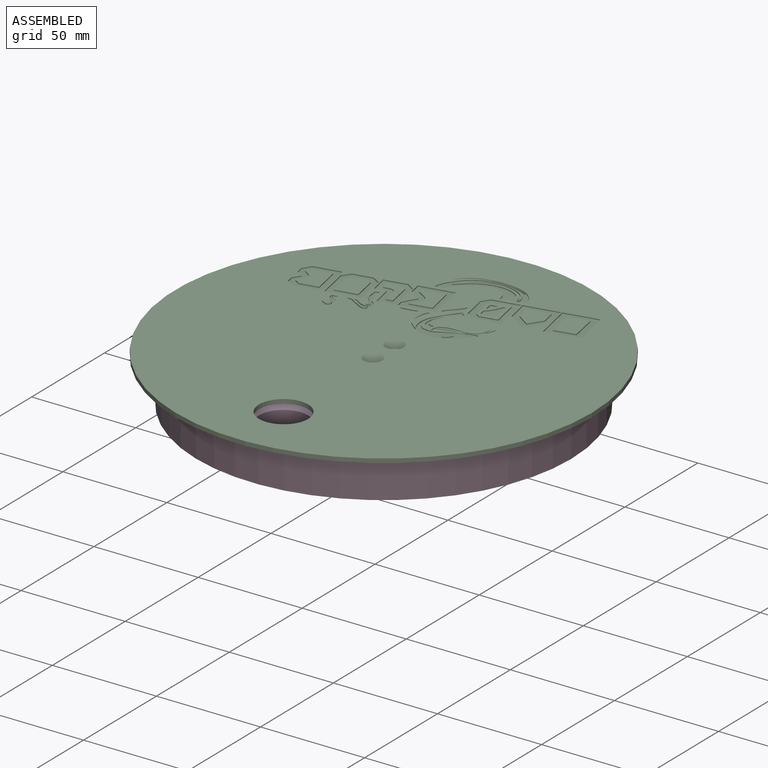
[diagram: assembled view]
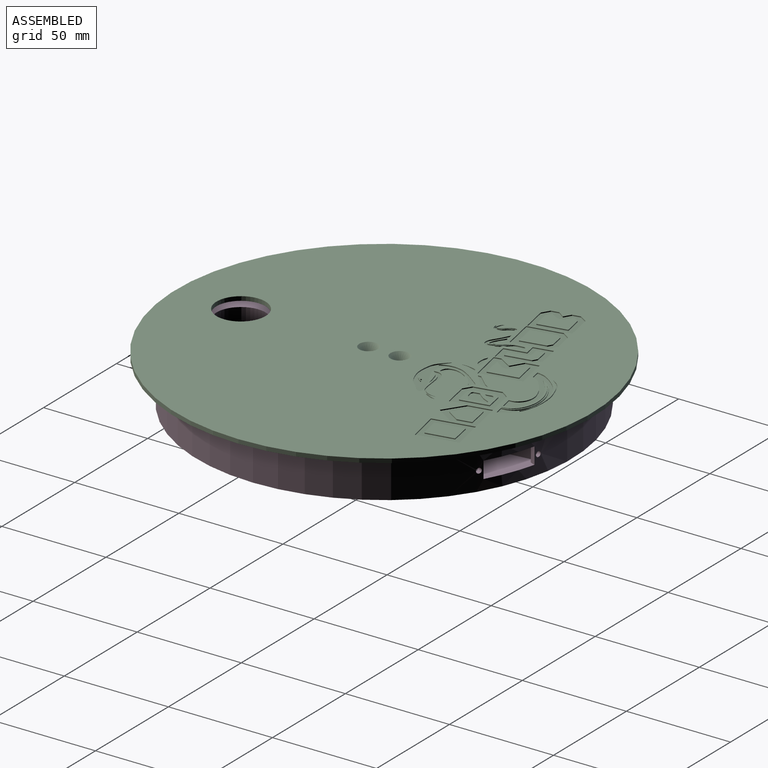
[diagram: assembled view, second angle]
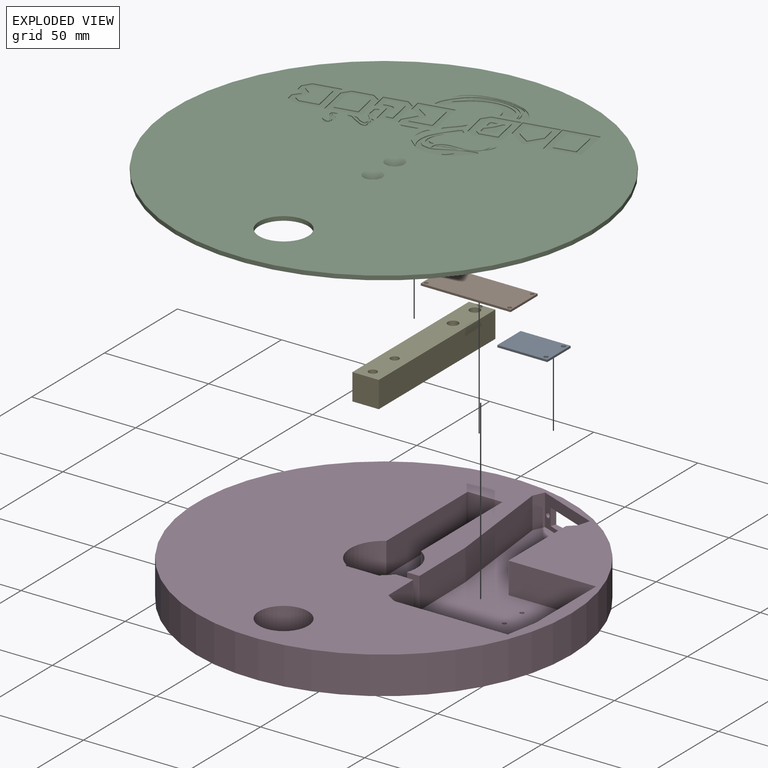
[diagram: exploded view]
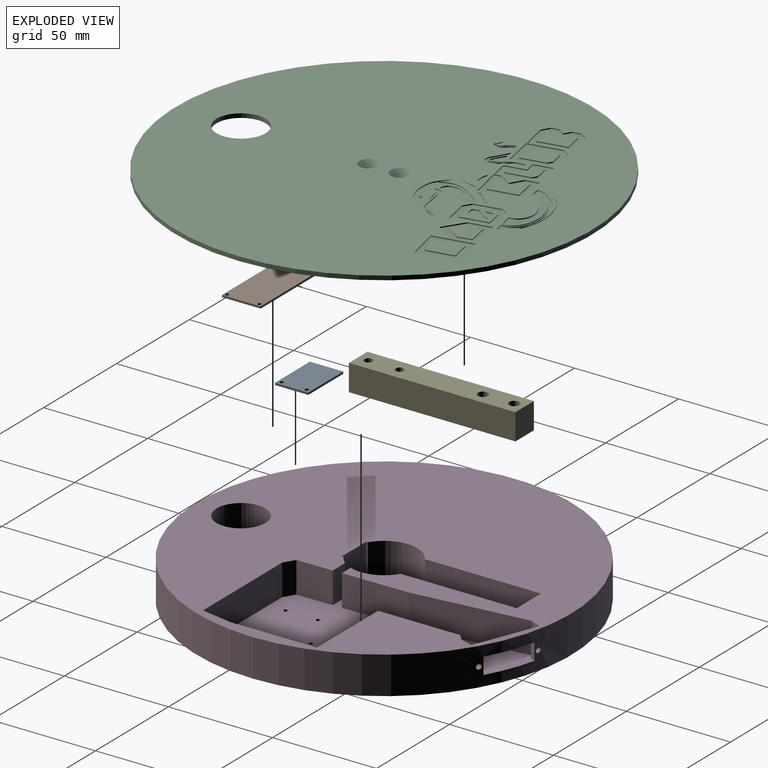
[diagram: exploded view, second angle]
ASSEMBLY  parts=5 mates=4
PART A: 8 faces, bbox 24x16x1 mm
  f0: plane 24x1mm, normal (0,-1,0), area 24mm2, adj f1,f3,f4,f5
  f1: plane 16x1mm, normal (1,0,0), area 16mm2, adj f0,f2,f4,f5
  f2: plane 24x1mm, normal (0,1,0), area 24mm2, adj f1,f3,f4,f5
  f3: plane 16x1mm, normal (-1,0,0), area 16mm2, adj f0,f2,f4,f5
  f4: plane 24x16mm, normal (0,0,1), area 377.7mm2, adj f0,f1,f2,f3,f6,f7
  f5: plane 24x16mm, normal (0,0,-1), area 377.7mm2, adj f0,f1,f2,f3,f6,f7
  f6: cylinder r=1mm len=2mm, axis (0,0,1), area 6.3mm2, adj f4,f5
  f7: cylinder r=1mm len=2mm, axis (0,0,1), area 6.3mm2, adj f4,f5
PART B: 10 faces, bbox 43.2x18.5x1 mm
  f0: plane 43.18x1mm, normal (0,-1,0), area 43.2mm2, adj f1,f3,f4,f5
  f1: plane 18.54x1mm, normal (1,0,0), area 18.5mm2, adj f0,f2,f4,f5
  f2: plane 43.18x1mm, normal (0,1,0), area 43.2mm2, adj f1,f3,f4,f5
  f3: plane 18.54x1mm, normal (-1,0,0), area 18.5mm2, adj f0,f2,f4,f5
  f4: plane 43.18x18.54mm, normal (0,0,1), area 790.7mm2, adj f0,f1,f2,f3,f6,f7,f8,f9
  f5: plane 43.18x18.54mm, normal (0,0,-1), area 790.7mm2, adj f0,f1,f2,f3,f6,f7,f8,f9
  f6: cylinder r=0.89mm len=1.78mm, axis (0,0,1), area 5.6mm2, adj f4,f5
  f7: cylinder r=0.89mm len=1.78mm, axis (0,0,1), area 5.6mm2, adj f4,f5
  f8: cylinder r=0.89mm len=1.78mm, axis (0,0,1), area 5.6mm2, adj f4,f5
  f9: cylinder r=0.89mm len=1.78mm, axis (0,0,1), area 5.6mm2, adj f4,f5
PART C: 187 faces, bbox 200x200x6 mm
  f0: plane 200x200mm, normal (0,0,1), area 28322.9mm2, adj f2,f3,f10,f12,f13,f16,f17,f18
  f1: plane 200x200mm, normal (0,0,-1), area 30660.6mm2, adj f2,f3,f4,f5,f6,f7
  f2: cylinder r=100mm len=200mm, axis (0,0,-1), area 1256.6mm2, adj f0,f1
  f3: cylinder r=11.81mm len=23.61mm, axis (0,0,-1), area 148.4mm2, adj f0,f1
  f4: plane 12.7x4mm, normal (0,1,0), area 50.8mm2, adj f1,f5,f7,f8
  f5: plane 25x4mm, normal (-1,0,0), area 100mm2, adj f1,f4,f6,f8
  f6: plane 12.7x4mm, normal (0,-1,0), area 50.8mm2, adj f1,f5,f7,f8
  f7: plane 25x4mm, normal (1,0,0), area 100mm2, adj f1,f4,f6,f8
  f8: plane 25x12.7mm, normal (0,0,-1), area 301.4mm2, adj f4,f5,f6,f7,f9,f11
  f9: cylinder r=1.6mm len=3.2mm, axis (0,0,1), area 31.4mm2, adj f8,f10
  f10: cone r=1.6mm half-angle=45deg, axis (0,0,1), area 77.8mm2, adj f0,f9
  f11: cylinder r=1.6mm len=3.2mm, axis (0,0,1), area 31.4mm2, adj f8,f12
  f12: cone r=1.6mm half-angle=45deg, axis (0,0,1), area 77.8mm2, adj f0,f11
  f13: extruded ~27.86x24.67mm, area 59.8mm2, adj f0,f15
  f14: extruded ~3.57x3.29mm, area 5.2mm2, adj f15,f167
  f15: plane 29.77x25.54mm, normal (0,0,1), area 150mm2, adj f13,f14
  f16: plane 0.46x0.42mm, normal (0,1,0), area 0.2mm2, adj f0,f17,f18,f19
  f17: extruded ~26.94x9.3mm, area 15.4mm2, adj f0,f16,f18,f19
  f18: extruded ~26.52x8.74mm, area 14.9mm2, adj f0,f16,f17,f19
  f19: plane 26.94x9.36mm, normal (0,0,1), area 16.6mm2, adj f16,f17,f18
  f20: extruded ~5.87x2.06mm, area 2.9mm2, adj f0,f21,f22
  f21: extruded ~5.87x1.97mm, area 2.9mm2, adj f0,f20,f22
  f22: plane 5.87x2.09mm, normal (0,0,1), area 2.9mm2, adj f20,f21
  f23: extruded ~18.16x12.3mm, area 11.5mm2, adj f0,f24,f28,f29
  f24: extruded ~19.28x14.25mm, area 13mm2, adj f0,f23,f25,f29
  f25: plane 0.46x0.35mm, normal (0.96,0.28,0), area 0.2mm2, adj f0,f24,f26,f29
  f26: plane 0.46x0.35mm, normal (-0.86,0.51,0), area 0.2mm2, adj f0,f25,f27,f29
  f27: extruded ~9.86x4.38mm, area 5.1mm2, adj f0,f26,f28,f29
  f28: extruded ~8.94x2.43mm, area 4.3mm2, adj f0,f23,f27,f29
  f29: plane 19.58x14.6mm, normal (0,0,1), area 25.7mm2, adj f23,f24,f25,f26,f27,f28
  f30: plane 16.1x3.5mm, normal (-0.21,0.98,0), area 7.6mm2, adj f0,f31,f37,f38
  f31: plane 18.73x3.83mm, normal (-0.98,-0.2,0), area 8.8mm2, adj f0,f30,f32,f38
  f32: plane 16.14x3.3mm, normal (0.2,-0.98,0), area 7.6mm2, adj f0,f31,f37,f38
  f33: plane 13x2.47mm, normal (0.98,0.19,0), area 6.1mm2, adj f34,f36,f38,f39
  f34: plane 9.79x2.13mm, normal (0.21,-0.98,0), area 4.6mm2, adj f33,f35,f38,f39
  f35: plane 13.26x2.52mm, normal (-0.98,-0.19,0), area 6.2mm2, adj f34,f36,f38,f39
  f36: plane 9.84x1.87mm, normal (-0.19,0.98,0), area 4.6mm2, adj f33,f35,f38,f39
  f37: plane 18.93x3.87mm, normal (0.98,0.2,0), area 8.9mm2, adj f0,f30,f32,f38
  f38: plane 22.23x19.97mm, normal (0,0,1), area 182.8mm2, adj f30,f31,f32,f33,f34,f35,f36,f37
  f39: plane 15.13x12.3mm, normal (0,0,1), area 133.8mm2, adj f33,f34,f35,f36
  f40: plane 10.55x2.05mm, normal (-0.19,0.98,0), area 4.9mm2, adj f41,f49,f50,f184
  f41: plane 6.63x1.34mm, normal (0.98,0.2,0), area 3.1mm2, adj f40,f42,f50,f184
  f42: plane 6.4x4.19mm, normal (0.84,-0.55,0), area 3.5mm2, adj f41,f43,f50,f184
  f43: plane 6.26x4.09mm, normal (-0.55,-0.84,0), area 3.4mm2, adj f42,f49,f50,f184
  f44: plane 9.58x6.32mm, normal (-0.83,0.55,0), area 5.3mm2, adj f0,f45,f48,f50
  f45: plane 10.95x2.11mm, normal (-0.98,-0.19,0), area 5.1mm2, adj f0,f44,f46,f50
  f46: plane 16.16x3.25mm, normal (0.2,-0.98,0), area 7.6mm2, adj f0,f45,f47,f50
  f47: plane 10.83x2.18mm, normal (0.98,0.2,0), area 5.1mm2, adj f0,f46,f48,f50
  f48: plane 9.76x6.44mm, normal (0.55,0.83,0), area 5.4mm2, adj f0,f44,f47,f50
  f49: plane 6.88x1.44mm, normal (-0.98,-0.2,0), area 3.2mm2, adj f40,f43,f50,f184
  f50: plane 20.53x18.27mm, normal (0,0,1), area 147mm2, adj f40,f41,f42,f43,f44,f45,f46,f47
  f51: plane 12.57x2.46mm, normal (-0.19,0.98,0), area 5.9mm2, adj f0,f52,f62,f63
  f52: plane 18.86x3.79mm, normal (-0.98,-0.2,0), area 8.8mm2, adj f0,f51,f53,f63
  f53: plane 12.69x2.55mm, normal (0.2,-0.98,0), area 6mm2, adj f0,f52,f54,f63
  f54: plane 3.72x2.58mm, normal (0.82,-0.57,0), area 2.1mm2, adj f0,f53,f55,f63
  f55: plane 12.6x2.57mm, normal (0.98,0.2,0), area 5.9mm2, adj f0,f54,f62,f63
  f56: plane 12.98x2.61mm, normal (0.98,0.2,0), area 6.1mm2, adj f57,f61,f63,f168
  f57: plane 8.18x1.77mm, normal (0.21,-0.98,0), area 3.9mm2, adj f56,f58,f63,f168
  f58: plane 2.02x1.37mm, normal (-0.56,-0.83,0), area 1.1mm2, adj f57,f59,f63,f168
  f59: plane 9.57x1.92mm, normal (-0.98,-0.2,0), area 4.5mm2, adj f58,f60,f63,f168
  f60: plane 2.17x1.34mm, normal (-0.85,0.52,0), area 1.2mm2, adj f59,f61,f63,f168
  f61: plane 8.18x1.64mm, normal (-0.2,0.98,0), area 3.8mm2, adj f56,f60,f63,f168
  f62: plane 3.93x2.45mm, normal (0.53,0.85,0), area 2.1mm2, adj f0,f51,f55,f63
  f63: plane 21.32x19.06mm, normal (0,0,1), area 169.2mm2, adj f51,f52,f53,f54,f55,f56,f57,f58
  f64: plane 11.84x2.46mm, normal (0.98,0.2,0), area 5.6mm2, adj f65,f75,f76,f185
  f65: plane 10.39x2.05mm, normal (0.19,-0.98,0), area 4.9mm2, adj f64,f66,f76,f185
  f66: plane 11.83x2.33mm, normal (-0.98,-0.19,0), area 5.5mm2, adj f65,f67,f76,f185
  f67: plane 1.97x1.19mm, normal (-0.86,0.52,0), area 1.1mm2, adj f66,f68,f76,f185
  f68: plane 6.95x1.37mm, normal (-0.19,0.98,0), area 3.3mm2, adj f67,f75,f76,f185
  f69: plane 9.19x1.81mm, normal (0.19,-0.98,0), area 4.3mm2, adj f0,f70,f74,f76
  f70: plane 3.83x2.64mm, normal (0.82,-0.57,0), area 2.1mm2, adj f0,f69,f71,f76
  f71: plane 15.85x3.12mm, normal (0.98,0.19,0), area 7.4mm2, adj f0,f70,f72,f76
  f72: plane 15.91x3.13mm, normal (-0.19,0.98,0), area 7.5mm2, adj f0,f71,f73,f76
  f73: plane 15.92x3.15mm, normal (-0.98,-0.19,0), area 7.5mm2, adj f0,f72,f74,f76
  f74: plane 4.05x2.44mm, normal (-0.52,-0.86,0), area 2.2mm2, adj f0,f69,f73,f76
  f75: plane 2.13x1.28mm, normal (0.52,0.86,0), area 1.1mm2, adj f64,f68,f76,f185
  f76: plane 21.49x19.03mm, normal (0,0,1), area 161.5mm2, adj f64,f65,f66,f67,f68,f69,f70,f71
  f77: plane 13.48x2.65mm, normal (0.98,0.19,0), area 6.3mm2, adj f78,f91,f92,f186
  f78: plane 8.7x1.71mm, normal (0.19,-0.98,0), area 4.1mm2, adj f77,f79,f92,f186
  f79: plane 2.54x1.53mm, normal (-0.52,-0.86,0), area 1.4mm2, adj f78,f80,f92,f186
  f80: extruded ~9.35x4.21mm, area 5.5mm2, adj f79,f81,f92,f186
  f81: plane 2.57x1.56mm, normal (-0.85,0.52,0), area 1.4mm2, adj f80,f91,f92,f186
  f82: plane 12.83x2.53mm, normal (-0.19,0.98,0), area 6mm2, adj f0,f83,f90,f92
  f83: plane 18.97x3.82mm, normal (-0.98,-0.2,0), area 8.9mm2, adj f0,f82,f84,f92
  f84: plane 12.7x2.5mm, normal (0.19,-0.98,0), area 6mm2, adj f0,f83,f85,f92
  f85: plane 3.98x2.51mm, normal (0.85,-0.53,0), area 2.2mm2, adj f0,f84,f86,f92
  f86: plane 3.76x0.74mm, normal (0.98,0.19,0), area 1.8mm2, adj f0,f85,f87,f92
  f87: plane 3.39x2.04mm, normal (0.52,0.86,0), area 1.8mm2, adj f0,f86,f88,f92
  f88: plane 3.35x2.42mm, normal (0.81,-0.59,0), area 1.9mm2, adj f0,f87,f89,f92
  f89: plane 3.59x0.71mm, normal (0.98,0.19,0), area 1.7mm2, adj f0,f88,f90,f92
  f90: plane 3.78x2.28mm, normal (0.52,0.86,0), area 2mm2, adj f0,f82,f89,f92
  f91: plane 8.86x1.74mm, normal (-0.19,0.98,0), area 4.2mm2, adj f77,f81,f92,f186
  f92: plane 21.5x19.03mm, normal (0,0,1), area 168.3mm2, adj f77,f78,f79,f80,f81,f82,f83,f84
  f93: plane 15.98x3.36mm, normal (-0.21,0.98,0), area 7.5mm2, adj f0,f94,f104,f105
  f94: plane 19.21x3.86mm, normal (-0.98,-0.2,0), area 9mm2, adj f0,f93,f95,f105
  f95: plane 16.01x3.22mm, normal (0.2,-0.98,0), area 7.5mm2, adj f0,f94,f96,f105
  f96: plane 6.16x1.24mm, normal (0.98,0.2,0), area 2.9mm2, adj f0,f95,f97,f105
  f97: plane 5.86x3.53mm, normal (0.52,0.86,0), area 3.1mm2, adj f0,f96,f98,f105
  f98: plane 6.4x3.86mm, normal (0.86,-0.52,0), area 3.4mm2, adj f0,f97,f104,f105
  f99: extruded ~11.57x6.44mm, area 7.3mm2, adj f100,f103,f105,f106
  f100: plane 2.01x0.46mm, normal (-0.99,-0.14,0), area 0.9mm2, adj f99,f101,f105,f106
  f101: plane 10.59x2.14mm, normal (-0.2,0.98,0), area 5mm2, adj f100,f102,f105,f106
  f102: plane 13.67x2.76mm, normal (0.98,0.2,0), area 6.4mm2, adj f101,f103,f105,f106
  f103: plane 10.03x2.05mm, normal (0.2,-0.98,0), area 4.7mm2, adj f99,f102,f105,f106
  f104: plane 3.25x0.65mm, normal (0.98,0.2,0), area 1.5mm2, adj f0,f93,f98,f105
  f105: plane 22.57x19.87mm, normal (0,0,1), area 182.4mm2, adj f93,f94,f95,f96,f97,f98,f99,f100
  f106: plane 15.72x13.36mm, normal (0,0,1), area 113.1mm2, adj f99,f100,f101,f102,f103
  f107: plane 8.87x1.84mm, normal (0.98,0.2,0), area 4.2mm2, adj f0,f108,f120,f121
  f108: plane 5.34x1.11mm, normal (-0.2,0.98,0), area 2.5mm2, adj f0,f107,f109,f121
  f109: plane 10.09x2.09mm, normal (0.98,0.2,0), area 4.7mm2, adj f0,f108,f110,f121
  f110: plane 8.32x1.73mm, normal (-0.2,0.98,0), area 3.9mm2, adj f0,f109,f111,f121
  f111: plane 15.62x3.08mm, normal (-0.98,-0.19,0), area 7.3mm2, adj f0,f110,f112,f121
  f112: plane 3.98x2.69mm, normal (-0.56,-0.83,0), area 2.2mm2, adj f0,f111,f120,f121
  f113: extruded ~6.14x2.23mm, area 3.3mm2, adj f114,f119,f121,f122
  f114: plane 3.72x0.71mm, normal (-0.98,-0.19,0), area 1.7mm2, adj f113,f115,f121,f122
  f115: plane 6.64x1.27mm, normal (-0.19,0.98,0), area 3.1mm2, adj f114,f116,f121,f122
  f116: plane 2.11x1.27mm, normal (0.52,0.86,0), area 1.1mm2, adj f115,f117,f121,f122
  f117: plane 11.83x2.33mm, normal (0.98,0.19,0), area 5.5mm2, adj f116,f118,f121,f122
  f118: plane 3.01x0.53mm, normal (0.17,-0.98,0), area 1.4mm2, adj f117,f119,f121,f122
  f119: plane 6.95x1.23mm, normal (-0.98,-0.17,0), area 3.2mm2, adj f113,f118,f121,f122
  f120: plane 10.53x2.19mm, normal (0.2,-0.98,0), area 4.9mm2, adj f0,f107,f112,f121
  f121: plane 20.03x17.59mm, normal (0,0,1), area 147.6mm2, adj f107,f108,f109,f110,f111,f112,f113,f114
  f122: plane 13.63x11.08mm, normal (0,0,1), area 62.2mm2, adj f113,f114,f115,f116,f117,f118,f119
  f123: plane 0.46x0.16mm, normal (0.27,-0.96,0), area 0.1mm2, adj f0,f124,f125,f126
  f124: plane 1.09x0.46mm, normal (0.19,-0.98,0), area 0.5mm2, adj f0,f123,f125,f126
  f125: extruded ~7.65x2.39mm, area 7.3mm2, adj f0,f123,f124,f126
  f126: plane 7.72x2.45mm, normal (0,0,1), area 4.1mm2, adj f123,f124,f125
  f127: plane 6.95x6.15mm, normal (-0.66,0.75,0), area 4.3mm2, adj f0,f128,f130,f131
  f128: plane 3.16x0.46mm, normal (-0.99,-0.14,0), area 1.5mm2, adj f0,f127,f129,f131
  f129: extruded ~7.69x6.5mm, area 4.6mm2, adj f0,f128,f130,f131
  f130: plane 1.62x0.46mm, normal (1,0,0), area 0.7mm2, adj f0,f127,f129,f131
  f131: plane 9.31x6.95mm, normal (0,0,1), area 15.7mm2, adj f127,f128,f129,f130
  f132: extruded ~11.25x4.12mm, area 6.8mm2, adj f0,f133,f134,f135
  f133: plane 2.13x0.5mm, normal (-0.97,0.23,0), area 1mm2, adj f0,f132,f134,f135
  f134: extruded ~9.13x3.79mm, area 5.6mm2, adj f0,f132,f133,f135
  f135: plane 11.25x4.68mm, normal (0,0,1), area 13.4mm2, adj f132,f133,f134
  f136: plane 4.39x0.76mm, normal (-0.17,0.99,0), area 2.1mm2, adj f0,f137,f145,f146
  f137: extruded ~9.23x8.98mm, area 6mm2, adj f0,f136,f138,f146
  f138: extruded ~14.14x6.7mm, area 8.4mm2, adj f0,f137,f139,f146
  f139: plane 5.71x1.16mm, normal (-0.2,0.98,0), area 2.7mm2, adj f0,f138,f140,f146
  f140: extruded ~28.74x8.79mm, area 16.3mm2, adj f0,f139,f141,f146
  f141: extruded ~30.77x10.88mm, area 18.4mm2, adj f0,f140,f142,f146
  f142: plane 4.18x0.84mm, normal (-0.2,0.98,0), area 2mm2, adj f0,f141,f143,f146
  f143: extruded ~37.15x10.26mm, area 20.5mm2, adj f0,f142,f144,f146
  f144: extruded ~30.99x8.78mm, area 15.9mm2, adj f0,f143,f145,f146
  f145: extruded ~33.28x17.37mm, area 19.5mm2, adj f0,f136,f144,f146
  f146: plane 39.43x18.24mm, normal (0,0,1), area 205.9mm2, adj f136,f137,f138,f139,f140,f141,f142,f143
  f147: extruded ~9.46x3.34mm, area 6.8mm2, adj f0,f148,f152,f153
  f148: plane 2.64x0.48mm, normal (0.18,-0.98,0), area 1.2mm2, adj f0,f147,f149,f153
  f149: extruded ~7.68x4.01mm, area 6mm2, adj f0,f148,f152,f153
  f150: extruded ~6.04x3.3mm, area 3.2mm2, adj f151,f153,f154
  f151: extruded ~6.04x3.25mm, area 3.2mm2, adj f150,f153,f154
  f152: extruded ~3.89x1.97mm, area 2.1mm2, adj f0,f147,f149,f153
  f153: plane 9.54x5.52mm, normal (0,0,1), area 19.2mm2, adj f147,f148,f149,f150,f151,f152
  f154: plane 6.04x3.32mm, normal (0,0,1), area 2.5mm2, adj f150,f151
  f155: extruded ~14.79x13.12mm, area 13.7mm2, adj f0,f156,f159,f160
  f156: plane 1.89x0.46mm, normal (-0.98,-0.19,0), area 0.9mm2, adj f0,f155,f157,f160
  f157: plane 1.2x0.46mm, normal (0.19,-0.98,0), area 0.6mm2, adj f0,f156,f158,f160
  f158: extruded ~15.27x9.48mm, area 20mm2, adj f0,f157,f159,f160
  f159: plane 1.99x0.46mm, normal (0.17,-0.98,0), area 0.9mm2, adj f0,f155,f158,f160
  f160: plane 16.75x13.18mm, normal (0,0,1), area 40.8mm2, adj f155,f156,f157,f158,f159
  f161: extruded ~7.81x4.05mm, area 9.2mm2, adj f0,f162,f163
  f162: plane 1.32x0.46mm, normal (0.18,-0.98,0), area 0.6mm2, adj f0,f161,f163
  f163: plane 7.84x4.11mm, normal (0,0,1), area 8.7mm2, adj f161,f162
  f164: extruded ~8.35x2.57mm, area 4.4mm2, adj f0,f165,f166
  f165: plane 8.35x1.65mm, normal (0.19,-0.98,0), area 3.9mm2, adj f0,f164,f166
  f166: plane 8.35x2.59mm, normal (0,0,1), area 10.9mm2, adj f164,f165
  f167: plane 3.67x3.36mm, normal (0,0,1), area 2.4mm2, adj f14
  f168: plane 14.76x12.12mm, normal (0,0,1), area 81.3mm2, adj f56,f57,f58,f59,f60,f61,f169,f170
  f169: plane 2.94x2.05mm, normal (-0.57,0.82,0), area 1.6mm2, adj f168,f170,f177,f178
  f170: plane 8.05x1.62mm, normal (-0.98,-0.2,0), area 3.8mm2, adj f168,f169,f171,f178
  f171: plane 0.97x0.46mm, normal (0.2,-0.98,0), area 0.5mm2, adj f168,f170,f172,f178
  f172: plane 3.46x1.59mm, normal (0.91,-0.42,0), area 1.8mm2, adj f168,f171,f173,f178
  f173: plane 2.63x1.96mm, normal (0.8,-0.6,0), area 1.5mm2, adj f168,f172,f174,f178
  f174: plane 0.98x0.95mm, normal (0.7,-0.72,0), area 0.6mm2, adj f168,f173,f175,f178
  f175: plane 2.92x0.59mm, normal (0.98,0.2,0), area 1.4mm2, adj f168,f174,f176,f178
  f176: plane 0.84x0.49mm, normal (0.51,0.86,0), area 0.4mm2, adj f168,f175,f177,f178
  f177: plane 2.75x0.55mm, normal (-0.2,0.98,0), area 1.3mm2, adj f168,f169,f176,f178
  f178: plane 10.64x7.1mm, normal (0,0,1), area 42.9mm2, adj f169,f170,f171,f172,f173,f174,f175,f176
  f179: plane 4.46x2.69mm, normal (-0.86,0.52,0), area 2.4mm2, adj f168,f180,f182,f183
  f180: plane 2.86x0.46mm, normal (0.13,-0.99,0), area 1.3mm2, adj f168,f179,f181,f183
  f181: plane 0.85x0.48mm, normal (0.87,-0.49,0), area 0.4mm2, adj f168,f180,f182,f183
  f182: plane 3.24x0.65mm, normal (0.98,0.2,0), area 1.5mm2, adj f168,f179,f181,f183
  f183: plane 4.46x3.34mm, normal (0,0,1), area 6.9mm2, adj f179,f180,f181,f182
  f184: plane 13.03x11.88mm, normal (0,0,1), area 102.5mm2, adj f40,f41,f42,f43,f49
  f185: plane 15.17x12.72mm, normal (0,0,1), area 141.9mm2, adj f64,f65,f66,f67,f68,f75
  f186: plane 15.19x13.08mm, normal (0,0,1), area 127.8mm2, adj f77,f78,f79,f80,f81,f91
PART D: 47 faces, bbox 180x180x18 mm
  f0: cylinder r=90mm len=180mm, axis (0,0,1), area 9976.5mm2, adj f4,f6,f41,f42,f43,f44,f45,f46
  f1: plane 29.76x15mm, normal (-0.37,-0.93,0), area 278.2mm2, adj f4,f22,f23,f28,f41,f42,f43,f44
  f2: plane 55.83x15mm, normal (-1,0,0), area 812.4mm2, adj f3,f4,f27,f28,f37,f38
  f3: plane 16.7x14mm, normal (0,-1,0), area 233.8mm2, adj f2,f4,f7,f38
  f4: plane 180x180mm, normal (0,0,1), area 18395.4mm2, adj f0,f1,f2,f3,f5,f7,f8,f9
  f5: cylinder r=11.81mm len=23.61mm, axis (0,0,1), area 1335.2mm2, adj f4,f6
  f6: plane 180x180mm, normal (0,0,-1), area 24952.1mm2, adj f0,f5,f29,f30,f31,f32,f33,f34
  f7: plane 55.83x15mm, normal (1,0,0), area 812.4mm2, adj f3,f4,f8,f28,f37,f38
  f8: cylinder r=16.02mm len=27.35mm, axis (0,0,1), area 491.5mm2, adj f4,f7,f9,f28
  f9: plane 15x0.83mm, normal (1,0,0), area 12.4mm2, adj f4,f8,f10,f28
  f10: plane 16.7x15mm, normal (0,1,0), area 250.5mm2, adj f4,f9,f11,f28
  f11: plane 15x0.83mm, normal (-1,0,0), area 12.4mm2, adj f4,f10,f12,f28
  f12: cylinder r=16.02mm len=15mm, axis (0,0,1), area 85.3mm2, adj f4,f11,f13,f28
  f13: plane 15x8.53mm, normal (0,1,0), area 128mm2, adj f4,f12,f14,f28
  f14: plane 17.34x15mm, normal (1,0.01,0), area 260.1mm2, adj f4,f13,f15,f28
  f15: plane 15x5.11mm, normal (0.53,0.85,0), area 90.3mm2, adj f4,f14,f16,f28
  f16: plane 54.43x15mm, normal (0,1,0), area 816.4mm2, adj f4,f15,f17,f28
  f17: plane 15.47x15mm, normal (-0.98,0.18,0), area 235.8mm2, adj f4,f16,f18,f28
  f18: plane 41.2x15mm, normal (-1,0,0), area 618mm2, adj f4,f17,f19,f28
  f19: plane 42.02x15mm, normal (0,-1,0), area 630.3mm2, adj f4,f18,f20,f28
  f20: plane 39.36x15mm, normal (-1,0,0), area 590.4mm2, adj f4,f19,f21,f28
  f21: plane 15x3.44mm, normal (-0.68,0.73,0), area 70.5mm2, adj f4,f20,f22,f28
  f22: plane 15x5.83mm, normal (-0.96,0.28,0), area 91mm2, adj f1,f4,f21,f28
  f23: plane 15x5.21mm, normal (0.91,-0.42,0), area 86.1mm2, adj f1,f4,f24,f28
  f24: plane 54.94x15mm, normal (0.99,0.11,0), area 829.3mm2, adj f4,f23,f25,f28
  f25: plane 31.8x15mm, normal (1,0.01,0), area 477.1mm2, adj f4,f24,f26,f28
  f26: plane 15x6.05mm, normal (0,-1,0), area 90.7mm2, adj f4,f25,f27,f28
  f27: cylinder r=16.02mm len=19.25mm, axis (0,0,1), area 331.2mm2, adj f2,f4,f26,f28
  f28: plane 116.83x99.63mm, normal (0,0,1), area 6171mm2, adj f1,f2,f7,f8,f9,f10,f11,f12
  f29: cylinder r=1mm len=3mm, axis (0,0,1), area 18.8mm2, adj f6,f28
  f30: cylinder r=1mm len=3mm, axis (0,0,1), area 18.8mm2, adj f6,f28
  f31: cylinder r=1mm len=3mm, axis (0,0,1), area 18.8mm2, adj f6,f28
  f32: cylinder r=1mm len=3mm, axis (0,0,1), area 18.8mm2, adj f6,f28
  f33: cylinder r=1mm len=3mm, axis (0,0,1), area 18.8mm2, adj f6,f28
  f34: cylinder r=1mm len=3mm, axis (0,0,1), area 18.8mm2, adj f6,f28
  f35: cylinder r=1mm len=3mm, axis (0,0,1), area 18.8mm2, adj f6,f28
  f36: cylinder r=1mm len=3mm, axis (0,0,1), area 18.8mm2, adj f6,f28
  f37: plane 16.7x1mm, normal (0,-1,0), area 16.7mm2, adj f2,f7,f28,f38
  f38: plane 25x16.7mm, normal (0,0,1), area 385.7mm2, adj f2,f3,f7,f37,f39,f40
  f39: cylinder r=2.25mm len=4.5mm, axis (0,0,1), area 56.5mm2, adj f6,f38
  f40: cylinder r=2.25mm len=4.5mm, axis (0,0,1), area 56.5mm2, adj f6,f38
  f41: cylinder r=1.25mm len=3.27mm, axis (-0.37,-0.93,0), area 18.3mm2, adj f0,f1
  f42: cylinder r=1.25mm len=3.27mm, axis (-0.37,-0.93,0), area 18.3mm2, adj f0,f1
  f43: plane 23.29x11.27mm, normal (0,0,1), area 76mm2, adj f0,f1,f44,f45
  f44: plane 8x2.45mm, normal (0.93,-0.37,0), area 21mm2, adj f0,f1,f43,f46
  f45: plane 8x2.45mm, normal (-0.93,0.37,0), area 21mm2, adj f0,f1,f43,f46
  f46: plane 23.29x11.27mm, normal (0,0,-1), area 76mm2, adj f0,f1,f44,f45
PART E: 10 faces, bbox 12.7x80x12.7 mm
  f0: plane 80x12.7mm, normal (0,0,-1), area 951.6mm2, adj f1,f3,f4,f5,f6,f7,f8,f9
  f1: plane 80x12.7mm, normal (1,0,0), area 1016mm2, adj f0,f2,f4,f5
  f2: plane 80x12.7mm, normal (0,0,1), area 951.6mm2, adj f1,f3,f4,f5,f6,f7,f8,f9
  f3: plane 80x12.7mm, normal (-1,0,0), area 1016mm2, adj f0,f2,f4,f5
  f4: plane 12.7x12.7mm, normal (0,-1,0), area 161.3mm2, adj f0,f1,f2,f3
  f5: plane 12.7x12.7mm, normal (0,1,0), area 161.3mm2, adj f0,f1,f2,f3
  f6: cylinder r=2mm len=12.7mm, axis (0,0,1), area 159.6mm2, adj f0,f2
  f7: cylinder r=2mm len=12.7mm, axis (0,0,1), area 159.6mm2, adj f0,f2
  f8: cylinder r=2.5mm len=12.7mm, axis (0,0,1), area 199.5mm2, adj f0,f2
  f9: cylinder r=2.5mm len=12.7mm, axis (0,0,1), area 199.5mm2, adj f0,f2
PLACE A rot(axis=(1,0,0),180deg) t=(-7.72,-22.78,61.84)mm
PLACE B t=(-17.18,-46.86,63.84)mm
PLACE C t=(-73.05,-32.49,76.54)mm
PLACE D t=(-73.05,-32.49,74.84)mm fixed
PLACE E rot(axis=(0,0,1),180deg) t=(-73.05,-44.99,67.19)mm
MATE fastened D.f34 <-> A.f6  axis (0,0,1) through (2.28,-28.78,59.84)mm
MATE fastened D.f40 <-> E.f8  axis (0,0,1) through (-73.05,30.01,60.84)mm
MATE fastened C.f11 <-> E.f7  axis (0,0,-1) through (-73.05,-39.99,73.54)mm
MATE fastened B.f7 <-> D.f31  axis (0,0,1) through (2.88,-54.6,63.84)mm
